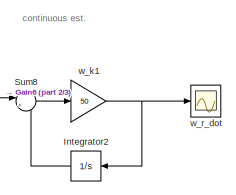
[diagram: root canvas - part 1/3, top right region]
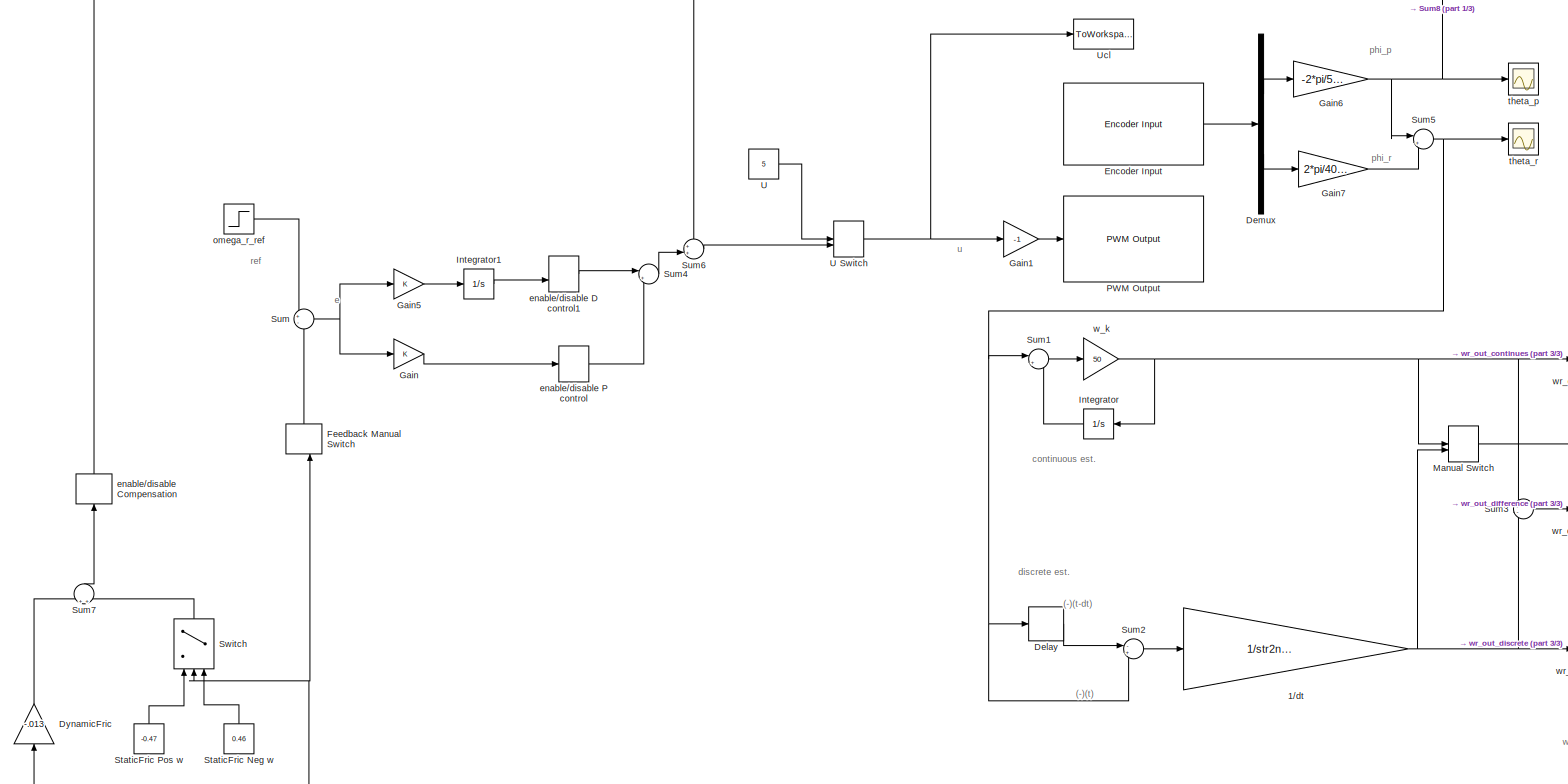
[diagram: root canvas - part 2/3, full width, middle band]
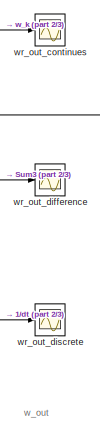
[diagram: root canvas - part 3/3, bottom right region]
MODEL slx_034dd35b8742
KIND model
CONFIG AbsTol = auto
CONFIG EnableMultiTasking = on
CONFIG FixedStep = auto
CONFIG MaxStep = auto
CONFIG MinStep = auto
CONFIG RelTol = 1e-3
CONFIG SampleTimeConstraint = Unconstrained
CONFIG Solver = ode45
CONFIG SolverName = ode45
CONFIG StartTime = 0.0
CONFIG StopTime = 10.0
BLOCK [Gain] 1//dt
  Gain = 1/str2num(get_param(bdroot,'FixedStep'))
  OutDataTypeStr = Inherit: Inherit via internal rule
  ParamDataTypeStr = Inherit: Inherit via internal rule
  SaturateOnIntegerOverflow = off
BLOCK [Delay] Delay
  DelayLength = 1
  InitialCondition = 0
  InputPortMap = u0
  Ports = [1, 1]
BLOCK [Demux] Demux
  DisplayOption = bar
  Outputs = 2
  Ports = [1, 2]
BLOCK [Gain] DynamicFric
  Gain = -.013
  OutDataTypeStr = Inherit: Inherit via internal rule
  ParamDataTypeStr = Inherit: Inherit via internal rule
  SaturateOnIntegerOverflow = off
BLOCK [Reference] Encoder Input  REF=c6xlib/Encoder Input
  Ports = [0, 1]
  SourceBlock = c6xlib/Encoder Input
  SourceType = Encoder Input Module
BLOCK [ManualSwitch] Feedback Manual Switch
  CurrentSetting = 0
BLOCK [Gain] Gain
  Gain = K
  OutDataTypeStr = Inherit: Inherit via internal rule
  ParamDataTypeStr = Inherit: Inherit via internal rule
  SaturateOnIntegerOverflow = off
BLOCK [Gain] Gain1
  Gain = -1
  OutDataTypeStr = Inherit: Inherit via internal rule
  ParamDataTypeStr = Inherit: Inherit via internal rule
  SaturateOnIntegerOverflow = off
BLOCK [Gain] Gain5
  Gain = K
  OutDataTypeStr = Inherit: Inherit via internal rule
  ParamDataTypeStr = Inherit: Inherit via internal rule
  SaturateOnIntegerOverflow = off
BLOCK [Gain] Gain6
  Gain = -2*pi/5000
  OutDataTypeStr = Inherit: Inherit via internal rule
  ParamDataTypeStr = Inherit: Inherit via internal rule
  SaturateOnIntegerOverflow = off
BLOCK [Gain] Gain7
  Gain = 2*pi/4000
  OutDataTypeStr = Inherit: Inherit via internal rule
  ParamDataTypeStr = Inherit: Inherit via internal rule
  SaturateOnIntegerOverflow = off
BLOCK [Integrator] Integrator
  Ports = [1, 1]
BLOCK [Integrator] Integrator1
  Ports = [1, 1]
BLOCK [Integrator] Integrator2
  Ports = [1, 1]
BLOCK [ManualSwitch] Manual Switch
  CurrentSetting = 0
BLOCK [Reference] PWM Output  REF=c6xlib/PWM Output
  Ports = [1]
  SourceBlock = c6xlib/PWM Output
  SourceType = PWM Output Module
BLOCK [Constant] StaticFric Neg w 
  Value = 0.46
BLOCK [Constant] StaticFric Pos w
  Value = -0.47
BLOCK [Sum] Sum
  IconShape = round
  InputSameDT = off
  Inputs = +-
  OutDataTypeStr = Inherit: Inherit via internal rule
  Ports = [2, 1]
  SaturateOnIntegerOverflow = off
BLOCK [Sum] Sum1
  IconShape = round
  InputSameDT = off
  Inputs = |+-
  OutDataTypeStr = Inherit: Inherit via internal rule
  Ports = [2, 1]
  SaturateOnIntegerOverflow = off
BLOCK [Sum] Sum2
  IconShape = round
  InputSameDT = off
  Inputs = -+
  OutDataTypeStr = Inherit: Inherit via internal rule
  Ports = [2, 1]
  SaturateOnIntegerOverflow = off
BLOCK [Sum] Sum3
  IconShape = round
  InputSameDT = off
  Inputs = +-
  OutDataTypeStr = Inherit: Inherit via internal rule
  Ports = [2, 1]
  SaturateOnIntegerOverflow = off
BLOCK [Sum] Sum4
  IconShape = round
  InputSameDT = off
  Inputs = |++
  OutDataTypeStr = Inherit: Inherit via internal rule
  Ports = [2, 1]
  SaturateOnIntegerOverflow = off
BLOCK [Sum] Sum5
  IconShape = round
  InputSameDT = off
  Inputs = |++
  OutDataTypeStr = Inherit: Inherit via internal rule
  Ports = [2, 1]
  SaturateOnIntegerOverflow = off
BLOCK [Sum] Sum6
  IconShape = round
  InputSameDT = off
  OutDataTypeStr = Inherit: Inherit via internal rule
  Ports = [2, 1]
  SaturateOnIntegerOverflow = off
BLOCK [Sum] Sum7
  IconShape = round
  InputSameDT = off
  OutDataTypeStr = Inherit: Inherit via internal rule
  Ports = [2, 1]
  SaturateOnIntegerOverflow = off
BLOCK [Sum] Sum8
  IconShape = round
  InputSameDT = off
  Inputs = |+-
  OutDataTypeStr = Inherit: Inherit via internal rule
  Ports = [2, 1]
  SaturateOnIntegerOverflow = off
BLOCK [Switch] Switch
  InputSameDT = off
  SaturateOnIntegerOverflow = off
BLOCK [Constant] U
  Value = 5
BLOCK [ManualSwitch] U Switch
BLOCK [ToWorkspace] Ucl
  FixptAsFi = on
  MaxDataPoints = inf
  Ports = [1]
  SampleTime = -1
  Save2DSignal = 3-D array (concatenate along third dimension)
  VariableName = Ucl
BLOCK [ManualSwitch] enable//disable Compensation
BLOCK [ManualSwitch] enable//disable D control1
BLOCK [ManualSwitch] enable//disable P control
BLOCK [Step] omega_r_ref
  After = 5
  SampleTime = 0
  Time = 0
BLOCK [Scope] theta_p
  NumInputPorts = 1
  Ports = [1]
  ScopeSpecificationString = Simulink.scopes.TimeScopeBlockCfg('CurrentConfiguration', extmgr.ConfigurationSet(extmgr.Configuration('Core','General UI',true),extmgr.Configuration('Core','Source UI',true),extmgr.Configuration('Sources','WiredSimulink',true,'DataLoggingVariableName','theta_p','DataLogging',true,'DataLoggingSaveFormat','Array'),extmgr.Configuration('Visuals','Time Domain',true,'SerializedDisplays',{struct('MinYL...<+1465ch>
BLOCK [Scope] theta_r
  NumInputPorts = 1
  Ports = [1]
  ScopeSpecificationString = Simulink.scopes.TimeScopeBlockCfg('CurrentConfiguration', extmgr.ConfigurationSet(extmgr.Configuration('Core','General UI',true),extmgr.Configuration('Core','Source UI',true),extmgr.Configuration('Sources','WiredSimulink',true,'DataLoggingVariableName','theta_r','DataLogging',true,'DataLoggingSaveFormat','Array'),extmgr.Configuration('Visuals','Time Domain',true,'SerializedDisplays',{struct('MinYL...<+1479ch>
BLOCK [Gain] w_k
  Gain = 50
  OutDataTypeStr = Inherit: Inherit via internal rule
  ParamDataTypeStr = Inherit: Inherit via internal rule
  SaturateOnIntegerOverflow = off
BLOCK [Gain] w_k1
  Gain = 50
  OutDataTypeStr = Inherit: Inherit via internal rule
  ParamDataTypeStr = Inherit: Inherit via internal rule
  SaturateOnIntegerOverflow = off
BLOCK [Scope] w_r_dot
  NumInputPorts = 1
  Ports = [1]
  ScopeSpecificationString = Simulink.scopes.TimeScopeBlockCfg('CurrentConfiguration', extmgr.ConfigurationSet(extmgr.Configuration('Core','General UI',true),extmgr.Configuration('Core','Source UI',true),extmgr.Configuration('Sources','WiredSimulink',true,'DataLoggingVariableName','ScopeData3'),extmgr.Configuration('Visuals','Time Domain',true,'SerializedDisplays',{struct('MinYLimReal','-1.22986','MaxYLimReal','8.58405','YLab...<+1414ch>
BLOCK [Scope] wr_out_continues
  NumInputPorts = 1
  Ports = [1]
  ScopeSpecificationString = Simulink.scopes.TimeScopeBlockCfg('CurrentConfiguration', extmgr.ConfigurationSet(extmgr.Configuration('Core','General UI',true),extmgr.Configuration('Core','Source UI',true),extmgr.Configuration('Sources','WiredSimulink',true,'DataLoggingVariableName','ScopeData4'),extmgr.Configuration('Visuals','Time Domain',true,'SerializedDisplays',{struct('MinYLimReal','-1.19417','MaxYLimReal','8.58008','YLab...<+1417ch>
BLOCK [Scope] wr_out_difference
  NumInputPorts = 1
  Ports = [1]
  ScopeSpecificationString = Simulink.scopes.TimeScopeBlockCfg('CurrentConfiguration', extmgr.ConfigurationSet(extmgr.Configuration('Core','General UI',true),extmgr.Configuration('Core','Source UI',true),extmgr.Configuration('Sources','WiredSimulink',true,'DataLoggingVariableName','ScopeData5'),extmgr.Configuration('Visuals','Time Domain',true,'SerializedDisplays',{struct('MinYLimReal','-4.56149','MaxYLimReal','28.44725','YLa...<+1396ch>
BLOCK [Scope] wr_out_discrete
  NumInputPorts = 1
  Ports = [1]
  ScopeSpecificationString = Simulink.scopes.TimeScopeBlockCfg('CurrentConfiguration', extmgr.ConfigurationSet(extmgr.Configuration('Core','General UI',true),extmgr.Configuration('Core','Source UI',true),extmgr.Configuration('Sources','WiredSimulink',true),extmgr.Configuration('Visuals','Time Domain',true,'SerializedDisplays',{struct('MinYLimReal','-12.72345','MaxYLimReal','114.51105','YLabelReal','','MinYLimMag','0.00000','M...<+1363ch>
ANNOTATION (root): (-)(t)
ANNOTATION (root): (-)(t-dt)
ANNOTATION (root): u
ANNOTATION (root): continuous est.
ANNOTATION (root): discrete est.
ANNOTATION (root): e
ANNOTATION (root): phi_p
ANNOTATION (root): phi_r
ANNOTATION (root): ref
ANNOTATION (root): w_out
NET 1//dt:1 -> Manual Switch:2, Sum3:2, wr_out_discrete:1
LINE Delay:1 -> Sum2:1
LINE Demux:1 -> Gain6:1
LINE Demux:2 -> Gain7:1
LINE DynamicFric:1 -> Sum7:1
LINE Encoder Input:1 -> Demux:1
LINE Feedback Manual Switch:1 -> Sum:2
LINE Gain1:1 -> PWM Output:1
LINE Gain5:1 -> Integrator1:1
NET Gain6:1 -> Sum5:1, Sum8:1, theta_p:1
LINE Gain7:1 -> Sum5:2
LINE Gain:1 -> enable//disable P control:1
LINE Integrator1:1 -> enable//disable D control1:2
LINE Integrator2:1 -> Sum8:2
LINE Integrator:1 -> Sum1:2
NET Manual Switch:1 -> DynamicFric:1, Feedback Manual Switch:2, Switch:2
LINE StaticFric Neg w :1 -> Switch:3
LINE StaticFric Pos w:1 -> Switch:1
LINE Sum1:1 -> w_k:1
LINE Sum2:1 -> 1//dt:1
LINE Sum3:1 -> wr_out_difference:1
LINE Sum4:1 -> Sum6:2
NET Sum5:1 -> Delay:1, Sum1:1, Sum2:2, theta_r:1
LINE Sum6:1 -> U Switch:2
LINE Sum7:1 -> enable//disable Compensation:1
LINE Sum8:1 -> w_k1:1
NET Sum:1 -> Gain5:1, Gain:1
LINE Switch:1 -> Sum7:2
NET U Switch:1 -> Gain1:1, Ucl:1
LINE U:1 -> U Switch:1
LINE enable//disable Compensation:1 -> Sum6:1
LINE enable//disable D control1:1 -> Sum4:1
LINE enable//disable P control:1 -> Sum4:2
LINE omega_r_ref:1 -> Sum:1
NET w_k1:1 -> Integrator2:1, w_r_dot:1
NET w_k:1 -> Integrator:1, Manual Switch:1, Sum3:1, wr_out_continues:1
note: NET lines group one-source signal fan-out (src -> all destinations, sorted); 1:1 wires keep LINE
